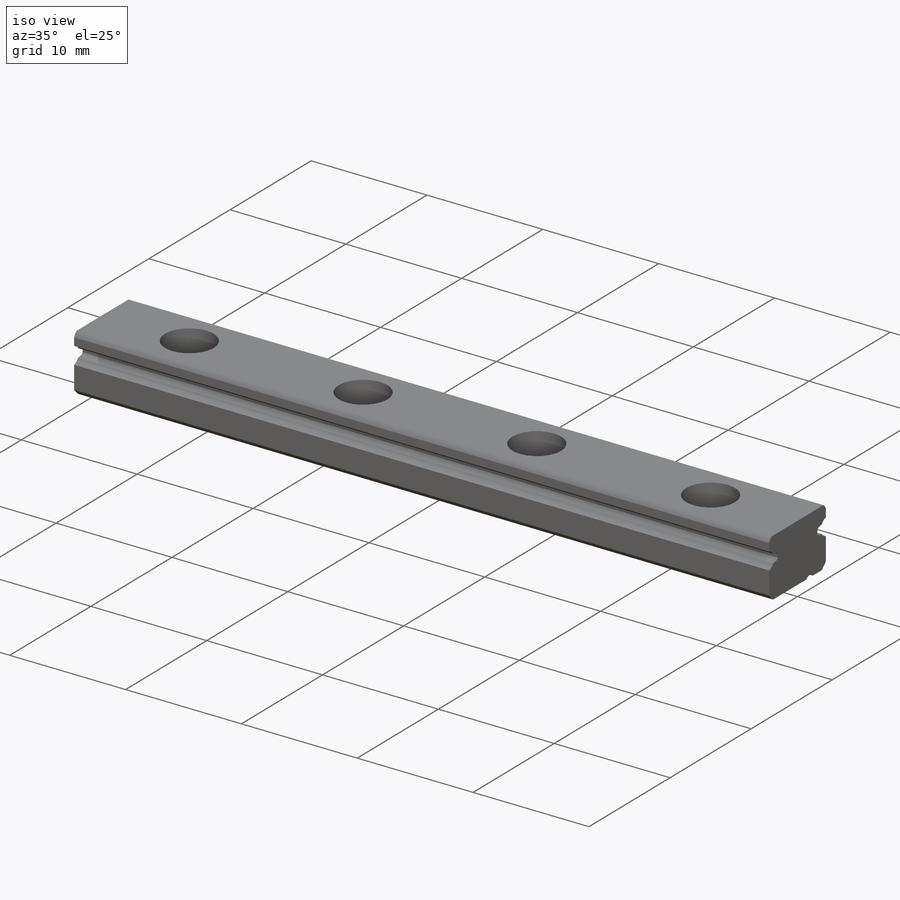
[diagram: iso view]
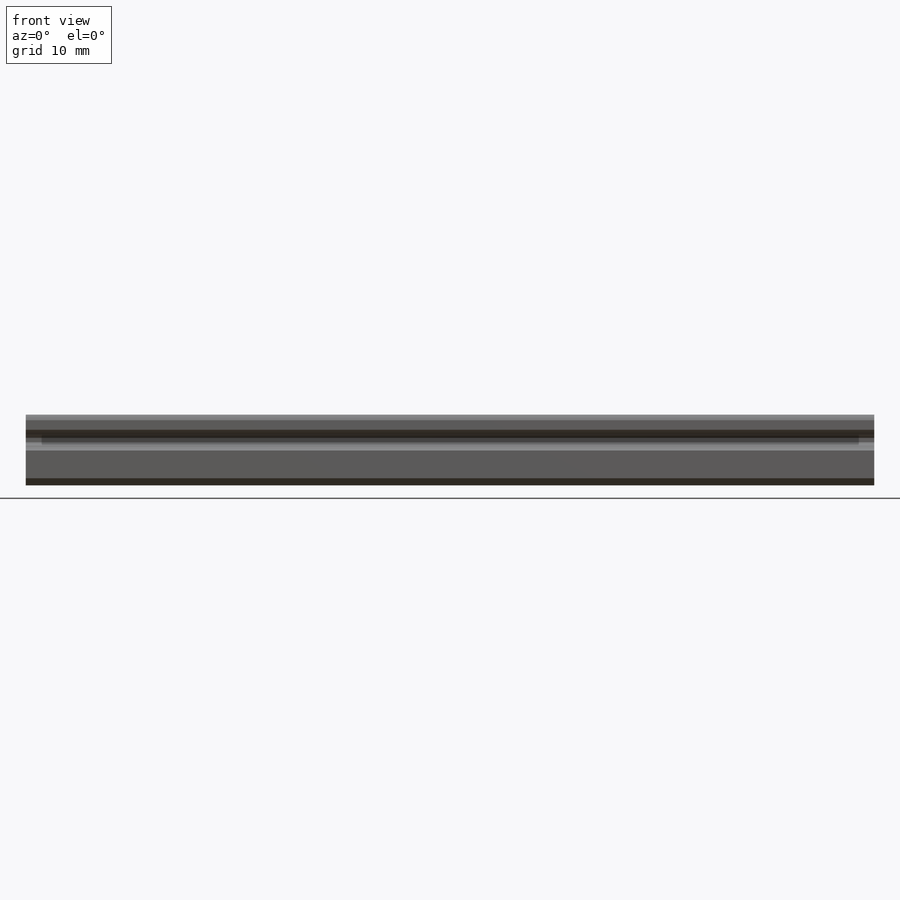
[diagram: front view]
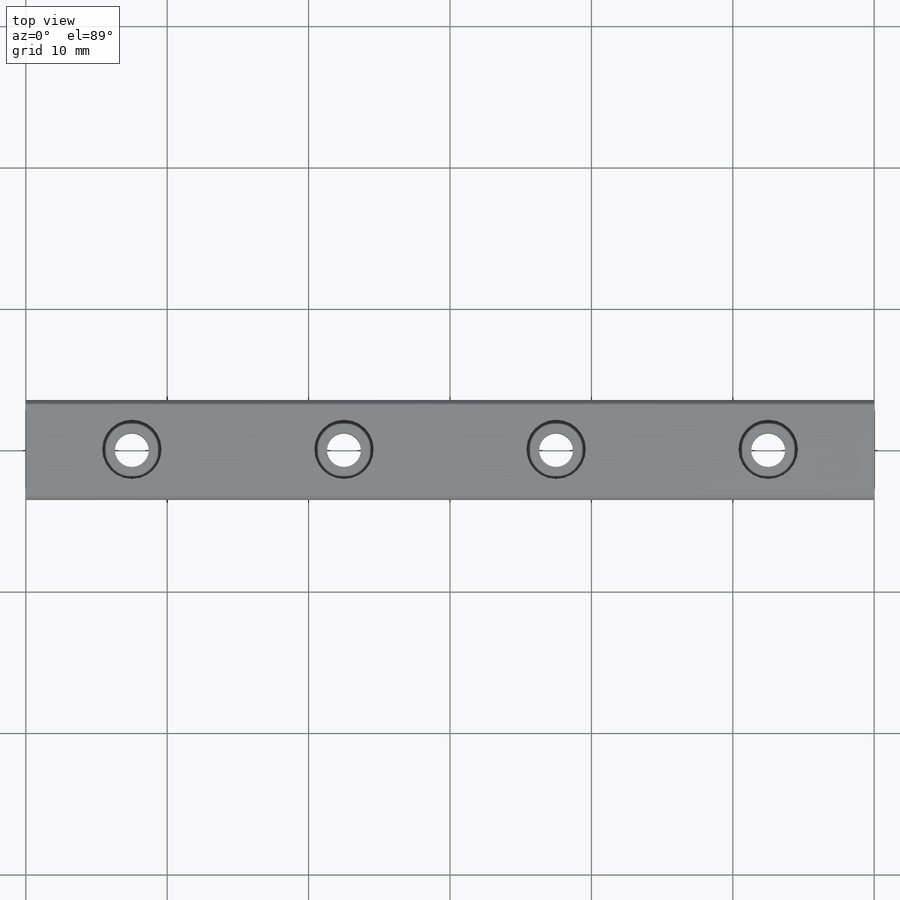
[diagram: top view]
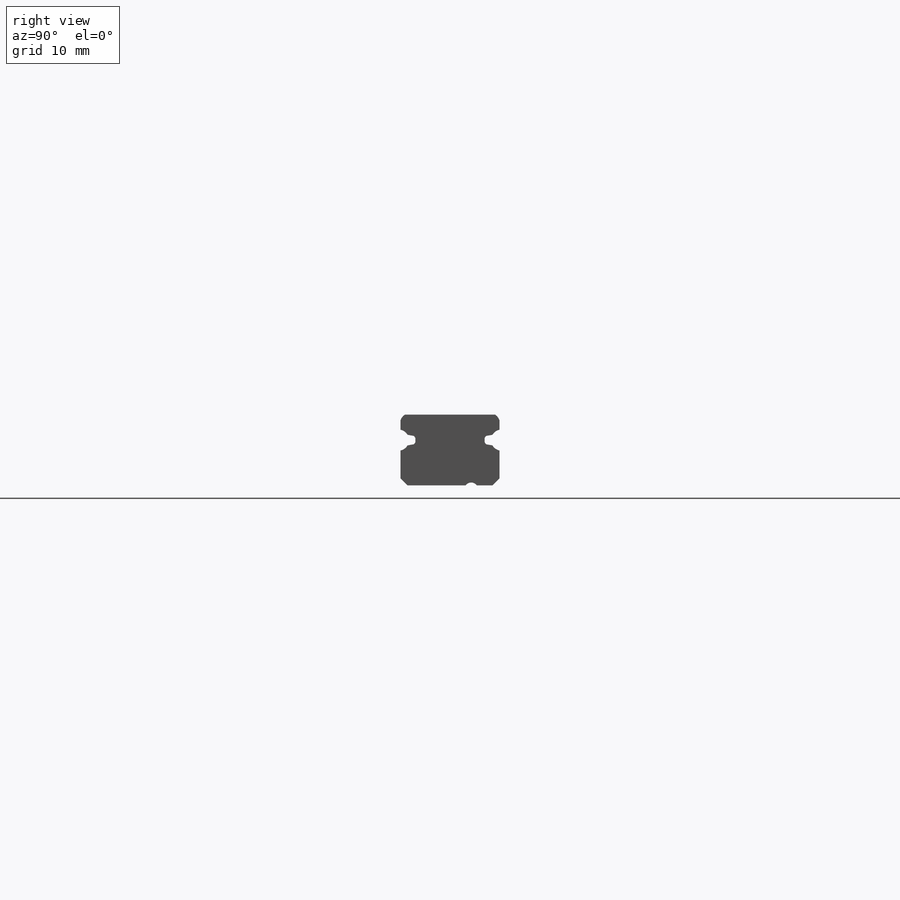
[diagram: right view]
SOLIDWORKS PART (.sldprt)
format: sldprt  version: not decoded by parser v0  size: 243,712 bytes
history: native  units: mm
features: sketch x4, cut_revolve x2, material x1, extrude x1, cut_extrude x1, pattern_linear x1 (+13 scaffold rows collapsed)
feature tree (23):
  scaffold x13  (default folders/planes/origin — collapsed)
  material  "Material <not specified>"
  sketch  "Sketch1"
  extrude  "Extrude1"  Depth=60mm
  sketch  "Sketch2"  dims[c1.D1=7.5mm c1.D2=2.4mm c1.D3=2.8mm c1.D4=4.2mm c1.D5=2.3mm c1.D6=2.5mm c2.D6=45.0deg]
  cut_revolve  "Cut-Revolve1"  Angle=360deg
  sketch  "Sketch3"  dims[c1.D1=7.5mm c1.D2=2.4mm c1.D3=2.8mm c1.D4=2.5mm c2.D4=45.0deg c2.D5=4.2mm c2.D6=2.3mm]
  cut_revolve  "Cut-Revolve2"  Angle=360deg
  sketch  "Sketch6"
  cut_extrude  "Extrude2"  [1 undecoded]
  pattern_linear  "LPattern1"  Count1=3 Count2=1 Spacing1=15mm Spacing2=1mm
decode coverage: 6 of 9 modeling features carry decoded parameters
note: 1 parameter value undecoded
note: suppression state not decoded; provenance and decode notes live in map.json
